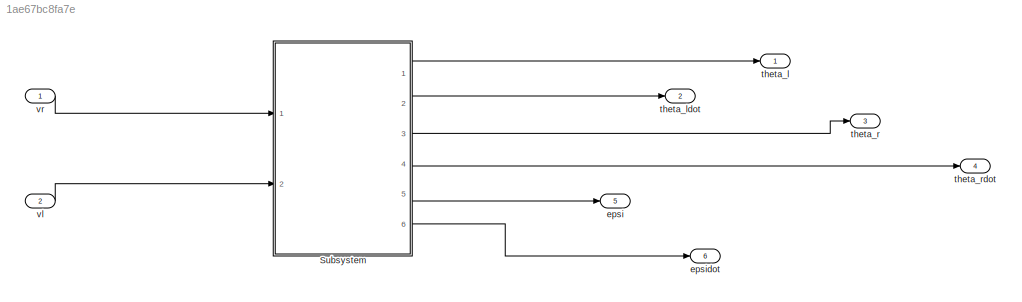
MODEL slx_1ae67bc8fa7e
KIND model
CONFIG AbsTol = auto
CONFIG FixedStep = auto
CONFIG MaxStep = auto
CONFIG MinStep = auto
CONFIG RelTol = 1e-3
CONFIG SampleTimeConstraint = Unconstrained
CONFIG Solver = ode3
CONFIG SolverMode = Auto
CONFIG SolverName = ode3
CONFIG StartTime = 0.0
CONFIG StopTime = 10.0
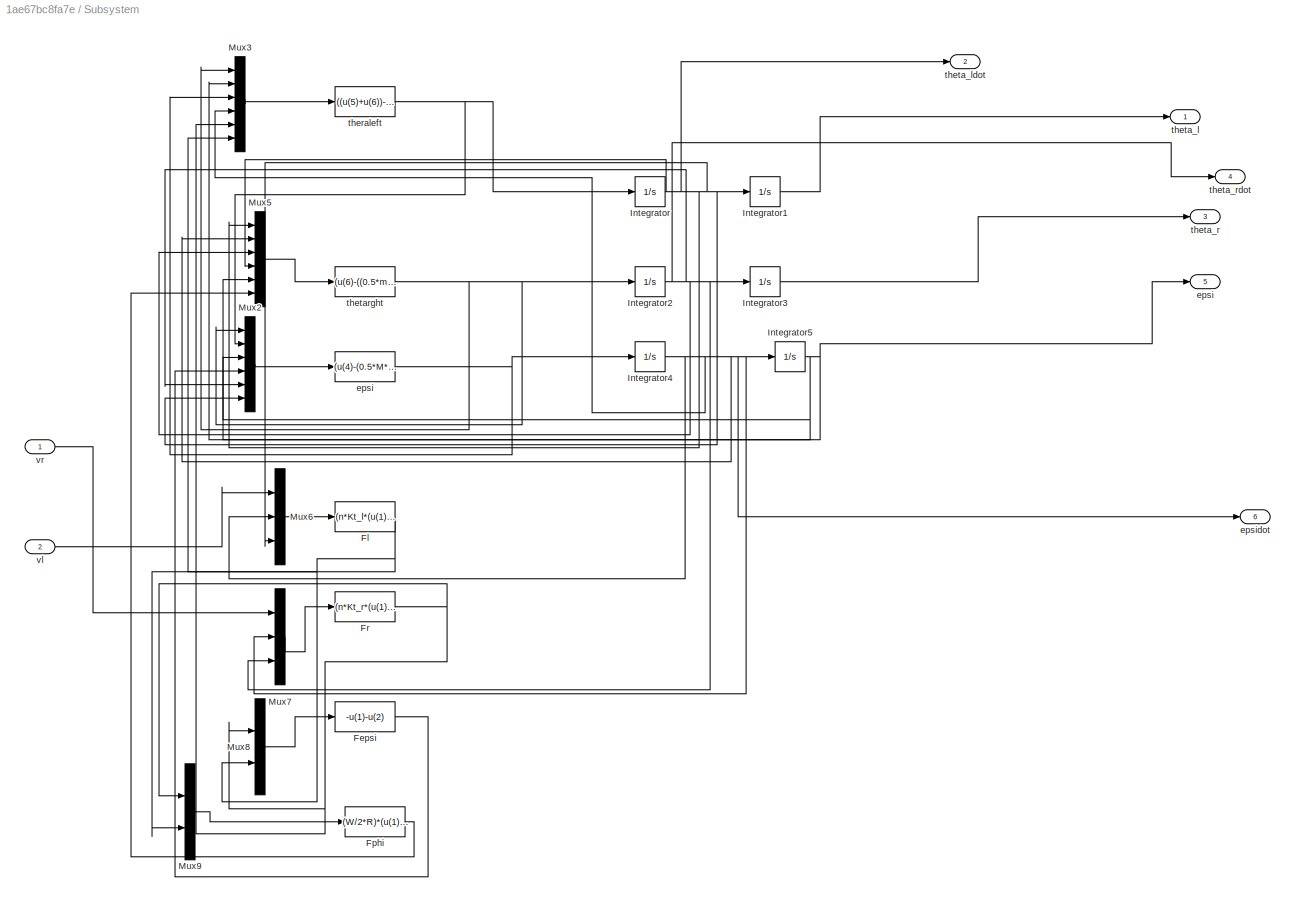
BLOCK [SubSystem] Subsystem
  Ports = [2, 6]
  RequestExecContextInheritance = off
BLOCK [Fcn] Subsystem/Fepsi
  Expr = -u(1)-u(2)
BLOCK [Fcn] Subsystem/Fl
  Expr = (n*Kt_l*(u(1)+Kb_l*(u(2)-u(3))*n))/R_a + fm_l*(u(2)-u(3))
BLOCK [Fcn] Subsystem/Fphi 
  Expr = (W/2*R)*(u(1)-u(2))
BLOCK [Fcn] Subsystem/Fr 
  Expr = (n*Kt_r*(u(1)+Kb_r*(u(2)-u(3))*n))/R_a+fm_r*(u(2)-u(3))
BLOCK [Integrator] Subsystem/Integrator
  Ports = [1, 1]
BLOCK [Integrator] Subsystem/Integrator1
  Ports = [1, 1]
BLOCK [Integrator] Subsystem/Integrator2
  Ports = [1, 1]
BLOCK [Integrator] Subsystem/Integrator3
  Ports = [1, 1]
BLOCK [Integrator] Subsystem/Integrator4
  Ports = [1, 1]
BLOCK [Integrator] Subsystem/Integrator5
  Ports = [1, 1]
BLOCK [Mux] Subsystem/Mux2
  DisplayOption = bar
  Inputs = 6
  Ports = [6, 1]
BLOCK [Mux] Subsystem/Mux3
  DisplayOption = bar
  Inputs = 6
  Ports = [6, 1]
BLOCK [Mux] Subsystem/Mux5
  DisplayOption = bar
  Inputs = 6
  Ports = [6, 1]
BLOCK [Mux] Subsystem/Mux6
  DisplayOption = bar
  Inputs = 3
  Ports = [3, 1]
BLOCK [Mux] Subsystem/Mux7
  DisplayOption = bar
  Inputs = 3
  Ports = [3, 1]
BLOCK [Mux] Subsystem/Mux8
  DisplayOption = bar
  Inputs = 2
  Ports = [2, 1]
BLOCK [Mux] Subsystem/Mux9
  DisplayOption = bar
  Inputs = 2
  Ports = [2, 1]
BLOCK [Fcn] Subsystem/epsi
  Expr = (u(4)-(0.5*M*L*R*cos(u(3))*(u(1)+u(2))-M*g*L*sin(u(3))-M*(L^2)*((R/W)*(u(5)-u(6)))^2*sin(u(3))*cos(u(3))))/(M*L^2+J_eps)
BLOCK [Outport] Subsystem/epsi 
  IconDisplay = Port number
  Port = 5
BLOCK [Outport] Subsystem/epsidot 
  IconDisplay = Port number
  Port = 6
BLOCK [Fcn] Subsystem/theraleft 
  Expr = ((u(5)+u(6))-(u(1)*0.5*(2*m+M)*(R^2)+Jw_r*u(1)+(M*L*R*cos(u(2)))*u(3)-M*L*R*u(4)^2*sin(u(2))))/(Jw_l+0.5*(2*m+M)*R^2);
BLOCK [Outport] Subsystem/theta_l 
  IconDisplay = Port number
BLOCK [Outport] Subsystem/theta_ldot 
  IconDisplay = Port number
  Port = 2
BLOCK [Outport] Subsystem/theta_r 
  IconDisplay = Port number
  Port = 3
BLOCK [Outport] Subsystem/theta_rdot 
  IconDisplay = Port number
  Port = 4
BLOCK [Fcn] Subsystem/thetarght
  Expr = (u(6)-((0.5*m*W^2+J_phi+M*(L^2)*sin(u(5))^2)*(R/W)*-u(1)-(W/2*R)*Jw_l*u(1)+2*M*L^2*u(2)*(R/W)*(u(3)-u(4))*sin(u(5))*cos(u(5))))/((W/(2*R))*Jw_r+(R/W)*(0.5*m*W^2+J_phi+M*(L^2)*sin(u(5))^2))
BLOCK [Inport] Subsystem/vl 
  IconDisplay = Port number
  Port = 2
BLOCK [Inport] Subsystem/vr
  IconDisplay = Port number
BLOCK [Outport] epsi 
  IconDisplay = Port number
  Port = 5
BLOCK [Outport] epsidot 
  IconDisplay = Port number
  Port = 6
BLOCK [Outport] theta_l 
  IconDisplay = Port number
BLOCK [Outport] theta_ldot 
  IconDisplay = Port number
  Port = 2
BLOCK [Outport] theta_r 
  IconDisplay = Port number
  Port = 3
BLOCK [Outport] theta_rdot 
  IconDisplay = Port number
  Port = 4
BLOCK [Inport] vl 
  IconDisplay = Port number
  Port = 2
BLOCK [Inport] vr
  IconDisplay = Port number
LINE Subsystem/Fepsi:1 -> Subsystem/Mux2:4
NET Subsystem/Fl:1 -> Subsystem/Mux3:6, Subsystem/Mux8:2, Subsystem/Mux9:2
LINE Subsystem/Fphi :1 -> Subsystem/Mux5:6
NET Subsystem/Fr :1 -> Subsystem/Mux3:5, Subsystem/Mux8:1, Subsystem/Mux9:1
LINE Subsystem/Integrator1:1 -> Subsystem/theta_l :1
NET Subsystem/Integrator2:1 -> Subsystem/Integrator3:1, Subsystem/Mux2:5, Subsystem/Mux5:3, Subsystem/Mux7:3, Subsystem/theta_rdot :1
LINE Subsystem/Integrator3:1 -> Subsystem/theta_r :1
NET Subsystem/Integrator4:1 -> Subsystem/Integrator5:1, Subsystem/Mux3:4, Subsystem/Mux5:2, Subsystem/Mux6:2, Subsystem/Mux7:2, Subsystem/epsidot :1
NET Subsystem/Integrator5:1 -> Subsystem/Mux2:3, Subsystem/Mux3:2, Subsystem/Mux5:5, Subsystem/epsi :1
NET Subsystem/Integrator:1 -> Subsystem/Integrator1:1, Subsystem/Mux2:6, Subsystem/Mux5:1, Subsystem/Mux5:4, Subsystem/Mux6:3, Subsystem/theta_ldot :1
LINE Subsystem/Mux2:1 -> Subsystem/epsi:1
LINE Subsystem/Mux3:1 -> Subsystem/theraleft :1
LINE Subsystem/Mux5:1 -> Subsystem/thetarght:1
LINE Subsystem/Mux6:1 -> Subsystem/Fl:1
LINE Subsystem/Mux7:1 -> Subsystem/Fr :1
LINE Subsystem/Mux8:1 -> Subsystem/Fepsi:1
LINE Subsystem/Mux9:1 -> Subsystem/Fphi :1
NET Subsystem/epsi:1 -> Subsystem/Integrator4:1, Subsystem/Mux3:3
NET Subsystem/theraleft :1 -> Subsystem/Integrator:1, Subsystem/Mux2:2
NET Subsystem/thetarght:1 -> Subsystem/Integrator2:1, Subsystem/Mux2:1, Subsystem/Mux3:1
LINE Subsystem/vl :1 -> Subsystem/Mux6:1
LINE Subsystem/vr:1 -> Subsystem/Mux7:1
LINE Subsystem:1 -> theta_l :1
LINE Subsystem:2 -> theta_ldot :1
LINE Subsystem:3 -> theta_r :1
LINE Subsystem:4 -> theta_rdot :1
LINE Subsystem:5 -> epsi :1
LINE Subsystem:6 -> epsidot :1
LINE vl :1 -> Subsystem:2
LINE vr:1 -> Subsystem:1
note: NET lines group one-source signal fan-out (src -> all destinations, sorted); 1:1 wires keep LINE
